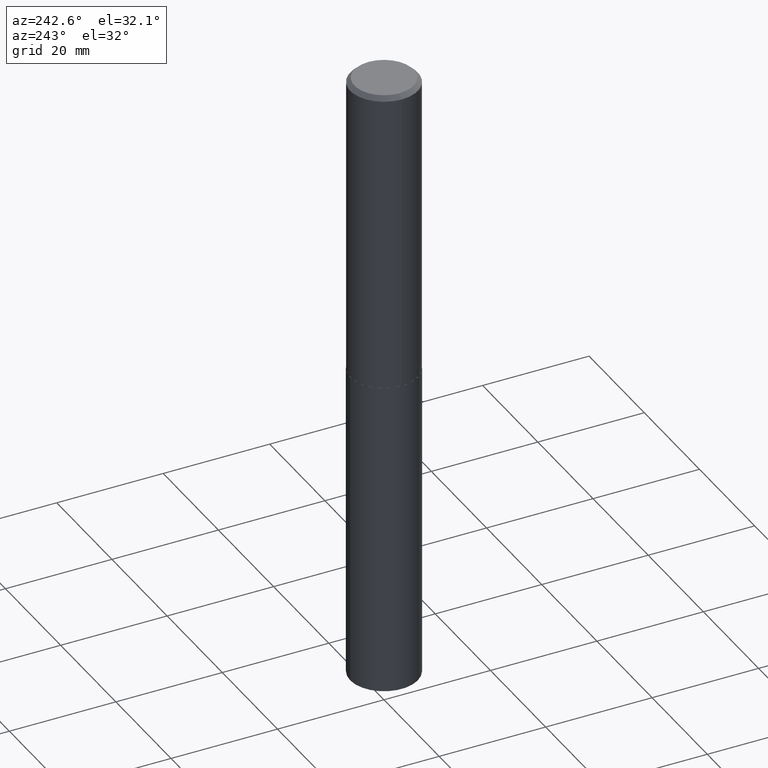
[diagram: clean part render]
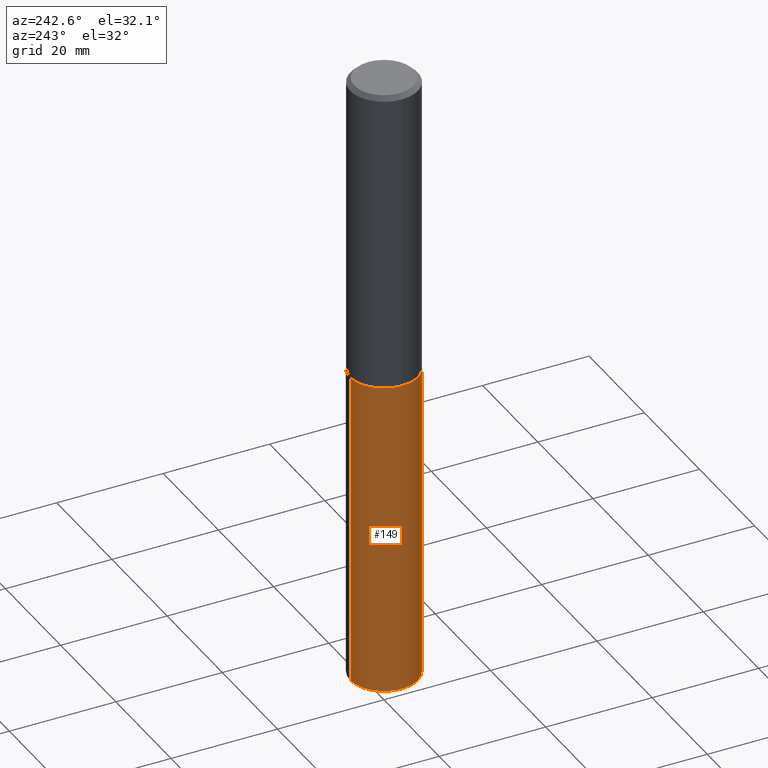
[diagram: same view with one face highlighted and labeled with its STEP entity id]
A machine part, auxiliary view. The second image highlights one B-rep face of the part: STEP entity #149.
In plain terms, the highlighted cylindrical surface (partial cylindrical patch) has radius 6.35 mm, axis along (-0, 0, 1).
Its self-contained STEP definition (entity closure, byte-faithful):
#10 = FACE_OUTER_BOUND ( 'NONE', #390, .T. ) ;
#12 = CARTESIAN_POINT ( 'NONE',  ( 1.124876667310066739E-28, -1.605986773344265841E-14, -4.599784845243109821 ) ) ;
#15 = AXIS2_PLACEMENT_3D ( 'NONE', #132, #331, #268 ) ;
#18 = VERTEX_POINT ( 'NONE', #36 ) ;
#32 = CIRCLE ( 'NONE', #251, 0.2500000000000000000 ) ;
#33 = DIRECTION ( 'NONE',  ( -2.445526819537206284E-29, 3.491398260421066944E-15, 1.000000000000000000 ) ) ;
#36 = CARTESIAN_POINT ( 'NONE',  ( -1.745740669421511457E-15, -0.2500000000000078271, -2.249999999999999112 ) ) ;
#51 = VERTEX_POINT ( 'NONE', #124 ) ;
#89 = CYLINDRICAL_SURFACE ( 'NONE', #15, 0.2500000000000000000 ) ;
#91 = CARTESIAN_POINT ( 'NONE',  ( 1.776356839400305291E-15, 0.2499999999999921452, -2.250000000000000444 ) ) ;
#92 = CARTESIAN_POINT ( 'NONE',  ( 1.776356839400362877E-15, 0.2499999999999921452, -2.250000000000000444 ) ) ;
#95 = DIRECTION ( 'NONE',  ( -6.982962677686265922E-15, -1.000000000000000000, 3.278217592397115862E-15 ) ) ;
#115 = AXIS2_PLACEMENT_3D ( 'NONE', #12, #255, #219 ) ;
#120 = LINE ( 'NONE', #160, #199 ) ;
#124 = CARTESIAN_POINT ( 'NONE',  ( 1.776356839400362483E-15, 0.2499999999999839018, -4.599784845243110709 ) ) ;
#129 = ORIENTED_EDGE ( 'NONE', *, *, #178, .F. ) ;
#132 = CARTESIAN_POINT ( 'NONE',  ( 5.502304813916556222E-29, -7.855833012397076871E-15, -2.249999999999999556 ) ) ;
#149 = ADVANCED_FACE ( 'NONE', ( #10 ), #89, .T. ) ;
#159 = VERTEX_POINT ( 'NONE', #92 ) ;
#160 = CARTESIAN_POINT ( 'NONE',  ( -1.745740669421511457E-15, -0.2500000000000078271, -2.249999999999999112 ) ) ;
#178 = EDGE_CURVE ( 'NONE', #51, #159, #213, .T. ) ;
#186 = VECTOR ( 'NONE', #238, 39.37007874015748143 ) ;
#199 = VECTOR ( 'NONE', #33, 39.37007874015748143 ) ;
#208 = CIRCLE ( 'NONE', #115, 0.2500000000000000000 ) ;
#213 = LINE ( 'NONE', #91, #186 ) ;
#219 = DIRECTION ( 'NONE',  ( -6.982962677686265922E-15, -1.000000000000000000, 4.370956789862821150E-15 ) ) ;
#225 = VERTEX_POINT ( 'NONE', #267 ) ;
#237 = EDGE_CURVE ( 'NONE', #225, #18, #120, .T. ) ;
#238 = DIRECTION ( 'NONE',  ( -2.445526819537206284E-29, 3.491398260421066944E-15, 1.000000000000000000 ) ) ;
#247 = CARTESIAN_POINT ( 'NONE',  ( 5.502304813916556222E-29, -7.855833012397076871E-15, -2.249999999999999556 ) ) ;
#251 = AXIS2_PLACEMENT_3D ( 'NONE', #247, #323, #95 ) ;
#252 = EDGE_CURVE ( 'NONE', #159, #18, #32, .T. ) ;
#255 = DIRECTION ( 'NONE',  ( -2.445526819537206284E-29, 3.491398260421066944E-15, 1.000000000000000000 ) ) ;
#267 = CARTESIAN_POINT ( 'NONE',  ( -1.745740669421453673E-15, -0.2500000000000159872, -4.599784845243108933 ) ) ;
#268 = DIRECTION ( 'NONE',  ( -6.982962677686265922E-15, -1.000000000000000000, 3.278217592397115862E-15 ) ) ;
#277 = ORIENTED_EDGE ( 'NONE', *, *, #252, .F. ) ;
#298 = EDGE_CURVE ( 'NONE', #51, #225, #208, .T. ) ;
#323 = DIRECTION ( 'NONE',  ( -2.445526819537206284E-29, 3.491398260421066944E-15, 1.000000000000000000 ) ) ;
#331 = DIRECTION ( 'NONE',  ( -2.445526819537206284E-29, 3.491398260421066944E-15, 1.000000000000000000 ) ) ;
#346 = ORIENTED_EDGE ( 'NONE', *, *, #298, .T. ) ;
#353 = ORIENTED_EDGE ( 'NONE', *, *, #237, .T. ) ;
#390 = EDGE_LOOP ( 'NONE', ( #129, #346, #353, #277 ) ) ;